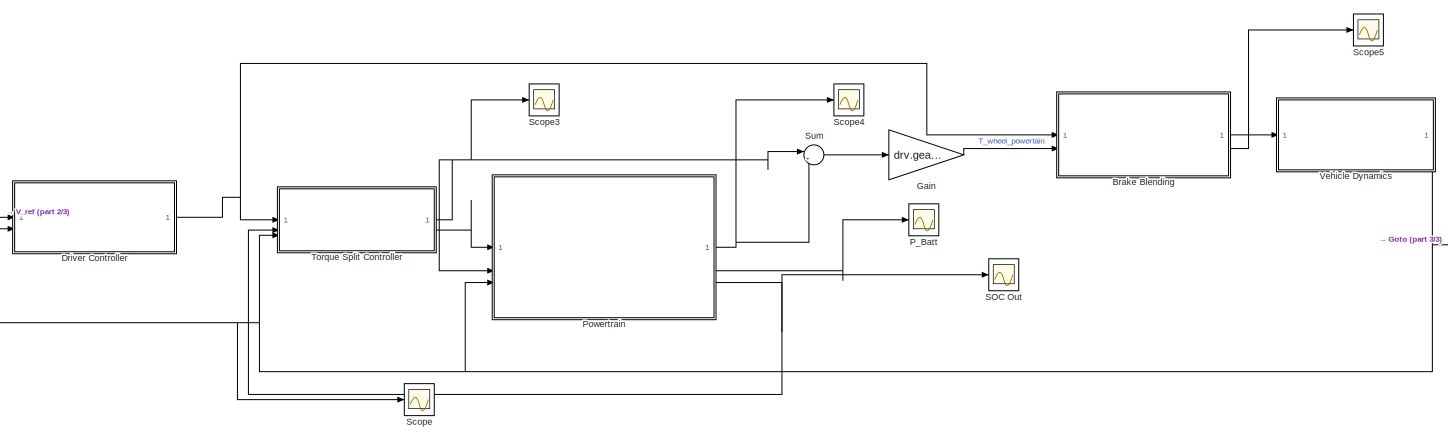
[diagram: root canvas - part 1/3, most of the canvas]
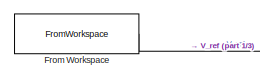
[diagram: root canvas - part 2/3, middle left region]
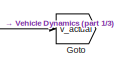
[diagram: root canvas - part 3/3, middle right region]
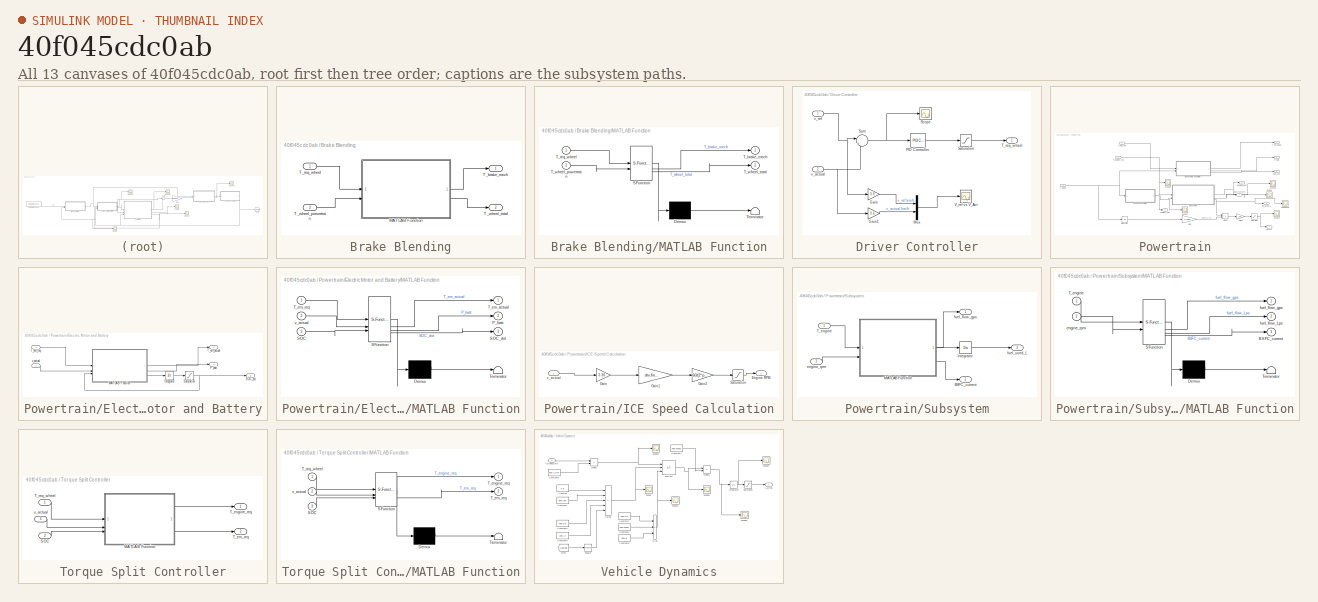
[diagram: thumbnail index - all 13 canvases of the model, root first then tree order]
MODEL slx_40f045cdc0ab
KIND model
CONFIG AbsTol = auto
CONFIG EnableMultiTasking = off
CONFIG FixedStep = auto
CONFIG MaxStep = auto
CONFIG MinStep = auto
CONFIG RelTol = 1e-3
CONFIG SampleTimeConstraint = Unconstrained
CONFIG SolverName = VariableStepAuto
CONFIG StartTime = 0.0
CONFIG StopTime = t_sim(end)
BLOCK [SubSystem] Brake Blending
BLOCK [SubSystem] Brake Blending/MATLAB Function
  ErrorFcn = Stateflow.Translate.translate
  PermitHierarchicalResolution = ExplicitOnly
  SFBlockType = MATLAB Function
  TreatAsAtomicUnit = on
BLOCK [Demux] Brake Blending/MATLAB Function/ Demux 
  Outputs = 1
BLOCK [S-Function] Brake Blending/MATLAB Function/ SFunction 
  EnableBusSupport = off
  FunctionName = sf_sfun
  PortCounts = [2 3]
  SFcnIsStateOwnerBlock = off
  SFunctionDeploymentMode = off
  Tag = Stateflow S-Function 3
BLOCK [Terminator] Brake Blending/MATLAB Function/ Terminator 
BLOCK [Outport] Brake Blending/MATLAB Function/T_brake_mech
BLOCK [Inport] Brake Blending/MATLAB Function/T_req_wheel
BLOCK [Inport] Brake Blending/MATLAB Function/T_wheel_powertrain
  Port = 2
BLOCK [Outport] Brake Blending/MATLAB Function/T_wheel_total
  Port = 2
BLOCK [Outport] Brake Blending/T_brake_mech
BLOCK [Inport] Brake Blending/T_req_wheel
BLOCK [Inport] Brake Blending/T_wheel_powertrain
  Port = 2
BLOCK [Outport] Brake Blending/T_wheel_total
  Port = 2
BLOCK [SubSystem] Driver Controller
BLOCK [Gain] Driver Controller/Gain
  Gain = 3.6
BLOCK [Gain] Driver Controller/Gain1
  Gain = 3.6
BLOCK [Mux] Driver Controller/Mux
  DisplayOption = bar
  Inputs = 2
BLOCK [Reference] Driver Controller/PID Controller  REF=slpidlib/PID Controller
  LibrarySourceBlock = simulink/Continuous/PID Controller
  SourceBlock = slpidlib/PID Controller
  SourceType = PID 1dof
BLOCK [Saturate] Driver Controller/Saturation
  LowerLimit = -8000
  UpperLimit = 9000
BLOCK [Scope] Driver Controller/Scope
  ActiveDisplayYMaximum = 6.4991716628019018
  ActiveDisplayYMinimum = -2.1142157270065436
  DataLoggingVariableName = ScopeData1
  Floating = off
  GraphicalSettings = {"Style":{"BackgroundColor":[0.12941176470588237,0.12941176470588237,0.12941176470588237],"AxesColor":[0.07058823529411765,0.07058823529411765,0.07058823529411765],"LabelsColor":[0.8509803921568627,0.8509803921568627,0.8509803921568627],"PreserveColors":false,"Visible":[true],"LineStyle":["-"],"LineWidth":[1.5],"BarWidth":[0.9],"LineColor":["auto"],"LineFaceAlpha":[1],"LineEdgeAlpha":[1],"Marker":...<+1987ch>
  MultipleDisplayCache = [{"MaxYLimMag":6.4991716628019018,"MaxYLimReal":6.4991716628019018,"MinYLimMag":0,"MinYLimReal":-2.1142157270065436,"PlotAsMagnitudePhase":false,"ShowGrid":true,"ShowLegend":false,"Title":"%<SignalLabel>","YLabel":""}]
  NumInputPorts = 1
  ScopeFrameLocation = window
  WasSavedAsWebScope = on
  WindowPosition = [1.000000,41.000000,1920.000000,1017.000000,]
BLOCK [Sum] Driver Controller/Sum
  Inputs = |+-
BLOCK [Outport] Driver Controller/T_req_wheel
BLOCK [Scope] Driver Controller/V_ref vs V_Act
  ActiveDisplayYMaximum = 116.00699165031097
  ActiveDisplayYMinimum = -59.84583962610084
  DataLoggingVariableName = ScopeData8
  Floating = off
  GraphicalSettings = {"Style":{"BackgroundColor":[0.12941176470588237,0.12941176470588237,0.12941176470588237],"AxesColor":[0.07058823529411765,0.07058823529411765,0.07058823529411765],"LabelsColor":[0.8509803921568627,0.8509803921568627,0.8509803921568627],"PreserveColors":false,"Visible":[true,true],"LineStyle":["-","-"],"LineWidth":[1.5,1.5],"BarWidth":[0.9,0.9],"LineColor":["auto","auto"],"LineFaceAlpha":[1,1],"Li...<+2128ch>
  MultipleDisplayCache = [{"MaxYLimMag":147.71536783772888,"MaxYLimReal":116.00699165031097,"MinYLimMag":0,"MinYLimReal":-59.84583962610084,"PlotAsMagnitudePhase":false,"ShowGrid":true,"ShowLegend":true,"Title":"%<SignalLabel>","YLabel":""}]
  NumInputPorts = 1
  ScopeFrameLocation = window
  ShowLegend = on
  WasSavedAsWebScope = on
  WindowPosition = [1.000000,41.000000,1920.000000,1017.000000,]
BLOCK [Inport] Driver Controller/v_actual
  Port = 2
BLOCK [Inport] Driver Controller/v_ref
BLOCK [FromWorkspace] From Workspace
  VariableName = drive_cycle_signal
BLOCK [Gain] Gain
  Gain = drv.gear_ratios(2) * drv.final_drive * drv.efficiency
BLOCK [Goto] Goto
  GotoTag = v_actual
  TagVisibility = global
BLOCK [Scope] P_Batt
  ActiveDisplayYMaximum = 55257.687996043387
  ActiveDisplayYMinimum = -50370.395250295172
  DataLoggingVariableName = ScopeData9
  Floating = off
  GraphicalSettings = {"Style":{"BackgroundColor":[0.12941176470588237,0.12941176470588237,0.12941176470588237],"AxesColor":[0.07058823529411765,0.07058823529411765,0.07058823529411765],"LabelsColor":[0.8509803921568627,0.8509803921568627,0.8509803921568627],"PreserveColors":false,"Visible":[true],"LineStyle":["-"],"LineWidth":[1.5],"BarWidth":[0.9],"LineColor":["auto"],"LineFaceAlpha":[1],"LineEdgeAlpha":[1],"Marker":...<+2015ch>
  MultipleDisplayCache = [{"MaxYLimMag":23015.815014718442,"MaxYLimReal":55257.687996043387,"MinYLimMag":0,"MinYLimReal":-50370.395250295172,"PlotAsMagnitudePhase":false,"ShowGrid":true,"ShowLegend":false,"Title":"%<SignalLabel>","YLabel":""}]
  NumInputPorts = 1
  ScopeFrameLocation = window
  Visible = on
  WasSavedAsWebScope = on
  WindowPosition = [680.000000,330.000000,560.000000,420.000000,]
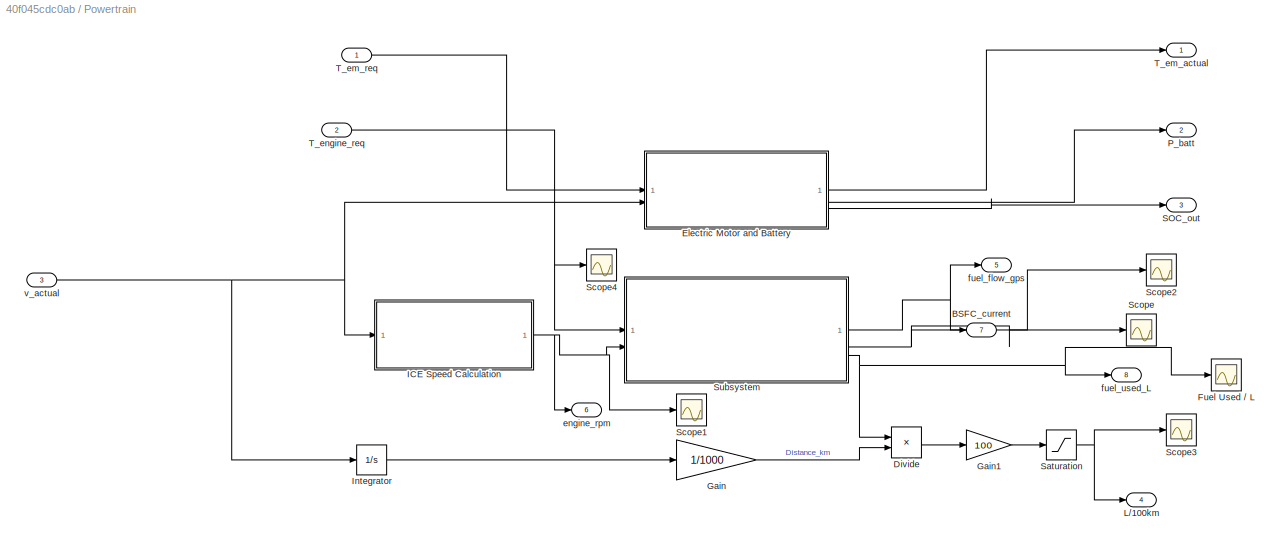
BLOCK [SubSystem] Powertrain
BLOCK [Outport] Powertrain/BSFC_current
  Port = 7
BLOCK [Product] Powertrain/Divide
  Inputs = */
BLOCK [SubSystem] Powertrain/Electric Motor and Battery
BLOCK [Integrator] Powertrain/Electric Motor and Battery/Integrator
  InitialCondition = batt.SOC_init
BLOCK [SubSystem] Powertrain/Electric Motor and Battery/MATLAB Function
  ErrorFcn = Stateflow.Translate.translate
  PermitHierarchicalResolution = ExplicitOnly
  SFBlockType = MATLAB Function
  TreatAsAtomicUnit = on
BLOCK [Demux] Powertrain/Electric Motor and Battery/MATLAB Function/ Demux 
  Outputs = 1
BLOCK [S-Function] Powertrain/Electric Motor and Battery/MATLAB Function/ SFunction 
  EnableBusSupport = off
  FunctionName = sf_sfun
  PortCounts = [3 4]
  SFcnIsStateOwnerBlock = off
  SFunctionDeploymentMode = off
  Tag = Stateflow S-Function 4
BLOCK [Terminator] Powertrain/Electric Motor and Battery/MATLAB Function/ Terminator 
BLOCK [Outport] Powertrain/Electric Motor and Battery/MATLAB Function/P_batt
  Port = 2
BLOCK [Inport] Powertrain/Electric Motor and Battery/MATLAB Function/SOC
  Port = 3
BLOCK [Outport] Powertrain/Electric Motor and Battery/MATLAB Function/SOC_dot
  Port = 3
BLOCK [Outport] Powertrain/Electric Motor and Battery/MATLAB Function/T_em_actual
BLOCK [Inport] Powertrain/Electric Motor and Battery/MATLAB Function/T_em_req
BLOCK [Inport] Powertrain/Electric Motor and Battery/MATLAB Function/v_actual
  Port = 2
BLOCK [Outport] Powertrain/Electric Motor and Battery/P_batt
  Port = 2
BLOCK [Outport] Powertrain/Electric Motor and Battery/SOC_out
  Port = 3
BLOCK [Saturate] Powertrain/Electric Motor and Battery/Saturation
  LowerLimit = 0.2
  UpperLimit = 1
BLOCK [Outport] Powertrain/Electric Motor and Battery/T_em_actual
BLOCK [Inport] Powertrain/Electric Motor and Battery/T_em_req
BLOCK [Inport] Powertrain/Electric Motor and Battery/v_actual
  Port = 2
BLOCK [Scope] Powertrain/Fuel Used // L
  ActiveDisplayYMaximum = 0.63814459638447762
  ActiveDisplayYMinimum = -0.070904955153830829
  DataLoggingVariableName = ScopeData19
  Floating = off
  GraphicalSettings = {"Style":{"BackgroundColor":[0.12941176470588237,0.12941176470588237,0.12941176470588237],"AxesColor":[0.07058823529411765,0.07058823529411765,0.07058823529411765],"LabelsColor":[0.8509803921568627,0.8509803921568627,0.8509803921568627],"PreserveColors":false,"Visible":[true],"LineStyle":["-"],"LineWidth":[1.5],"BarWidth":[0.9],"LineColor":["auto"],"LineFaceAlpha":[1],"LineEdgeAlpha":[1],"Marker":...<+2013ch>
  MultipleDisplayCache = [{"MaxYLimMag":0.63814459638447762,"MaxYLimReal":0.63814459638447762,"MinYLimMag":0,"MinYLimReal":-0.070904955153830829,"PlotAsMagnitudePhase":false,"ShowGrid":true,"ShowLegend":false,"Title":"%<SignalLabel>","YLabel":""}]
  NumInputPorts = 1
  ScopeFrameLocation = window
  Visible = on
  WasSavedAsWebScope = on
  WindowPosition = [0.000000,32.000000,1920.000000,1017.000000,]
BLOCK [Gain] Powertrain/Gain
  Gain = 1/1000
BLOCK [Gain] Powertrain/Gain1
  Gain = 100
BLOCK [SubSystem] Powertrain/ICE Speed Calculation
BLOCK [Outport] Powertrain/ICE Speed Calculation/Engine RPM
BLOCK [Gain] Powertrain/ICE Speed Calculation/Gain
  Gain = 3.36
BLOCK [Gain] Powertrain/ICE Speed Calculation/Gain1
  Gain = drv.final_drive
BLOCK [Gain] Powertrain/ICE Speed Calculation/Gain2
  Gain = 60/(2*pi)
BLOCK [Saturate] Powertrain/ICE Speed Calculation/Saturation
  LowerLimit = eng.idle_rpm
  UpperLimit = eng.redline_rpm
BLOCK [Inport] Powertrain/ICE Speed Calculation/v_actual
BLOCK [Integrator] Powertrain/Integrator
BLOCK [Outport] Powertrain/L//100km 
  Port = 4
BLOCK [Outport] Powertrain/P_batt
  Port = 2
BLOCK [Outport] Powertrain/SOC_out
  Port = 3
BLOCK [Saturate] Powertrain/Saturation
  LowerLimit = 0
  UpperLimit = inf
BLOCK [Scope] Powertrain/Scope
  ActiveDisplayYMaximum = 584.63475679783562
  ActiveDisplayYMinimum = -64.959417421981726
  DataLoggingVariableName = ScopeData14
  Floating = off
  GraphicalSettings = {"Style":{"BackgroundColor":[0.12941176470588237,0.12941176470588237,0.12941176470588237],"AxesColor":[0.07058823529411765,0.07058823529411765,0.07058823529411765],"LabelsColor":[0.8509803921568627,0.8509803921568627,0.8509803921568627],"PreserveColors":false,"Visible":[true],"LineStyle":["-"],"LineWidth":[1.5],"BarWidth":[0.9],"LineColor":["auto"],"LineFaceAlpha":[1],"LineEdgeAlpha":[1],"Marker":...<+2023ch>
  MultipleDisplayCache = [{"MaxYLimMag":584.63475679783562,"MaxYLimReal":584.63475679783562,"MinYLimMag":0,"MinYLimReal":-64.959417421981726,"PlotAsMagnitudePhase":false,"ShowGrid":true,"ShowLegend":false,"Title":"%<SignalLabel>","YLabel":""}]
  NumInputPorts = 1
  ScopeFrameLocation = window
  WasSavedAsWebScope = on
  WindowPosition = [680.000000,330.000000,560.000000,420.000000,]
BLOCK [Scope] Powertrain/Scope1
  ActiveDisplayYMaximum = 3848.0731026843932
  ActiveDisplayYMinimum = 461.32521081284528
  DataLoggingVariableName = ScopeData15
  Floating = off
  GraphicalSettings = {"Style":{"BackgroundColor":[0.12941176470588237,0.12941176470588237,0.12941176470588237],"AxesColor":[0.07058823529411765,0.07058823529411765,0.07058823529411765],"LabelsColor":[0.8509803921568627,0.8509803921568627,0.8509803921568627],"PreserveColors":false,"Visible":[true],"LineStyle":["-"],"LineWidth":[1.5],"BarWidth":[0.9],"LineColor":["auto"],"LineFaceAlpha":[1],"LineEdgeAlpha":[1],"Marker":...<+1924ch>
  MultipleDisplayCache = [{"MaxYLimMag":3848.0731026843932,"MaxYLimReal":3848.0731026843932,"MinYLimMag":461.32521081284528,"MinYLimReal":461.32521081284528,"PlotAsMagnitudePhase":false,"ShowGrid":true,"ShowLegend":false,"Title":"%<SignalLabel>","YLabel":""}]
  NumInputPorts = 1
  ScopeFrameLocation = window
  WasSavedAsWebScope = on
  WindowPosition = [1002.000000,312.000000,560.000000,420.000000,]
BLOCK [Scope] Powertrain/Scope2
  ActiveDisplayYMaximum = 4.6387579025661791
  ActiveDisplayYMinimum = -0.51541754472957535
  DataLoggingVariableName = ScopeData16
  Floating = off
  GraphicalSettings = {"Style":{"BackgroundColor":[0.12941176470588237,0.12941176470588237,0.12941176470588237],"AxesColor":[0.07058823529411765,0.07058823529411765,0.07058823529411765],"LabelsColor":[0.8509803921568627,0.8509803921568627,0.8509803921568627],"PreserveColors":false,"Visible":[true],"LineStyle":["-"],"LineWidth":[1.5],"BarWidth":[0.9],"LineColor":["auto"],"LineFaceAlpha":[1],"LineEdgeAlpha":[1],"Marker":...<+1928ch>
  MultipleDisplayCache = [{"MaxYLimMag":4.6387579025661791,"MaxYLimReal":4.6387579025661791,"MinYLimMag":0,"MinYLimReal":-0.51541754472957535,"PlotAsMagnitudePhase":false,"ShowGrid":true,"ShowLegend":false,"Title":"%<SignalLabel>","YLabel":""}]
  NumInputPorts = 1
  ScopeFrameLocation = window
  WasSavedAsWebScope = on
  WindowPosition = [680.000000,330.000000,560.000000,420.000000,]
BLOCK [Scope] Powertrain/Scope3
  ActiveDisplayYMaximum = 3.1273178989212891
  ActiveDisplayYMinimum = 2.066215608722449
  DataLoggingVariableName = ScopeData17
  Floating = off
  GraphicalSettings = {"AxesScalingProperties":{"AlignXAxis":"Center","AlignYAxis":"Center","AutoScaleXAxisLimits":false,"AxesScaling":"Manual","AxesScalingNumUpdates":10,"ExpandOnly":true,"ScaleAxesLimitsAtStop":false,"XAxisDataRange":100,"YAxisDataRange":80},"DisplayProperties":{"ColorOrder":["auto","auto","auto","auto","auto","auto","auto","auto","auto","auto","auto","auto","auto","auto","auto","auto","auto","auto",...<+2012ch>
  MultipleDisplayCache = [{"MaxYLimMag":481.80638113808465,"MaxYLimReal":3.1273178989212891,"MinYLimMag":0,"MinYLimReal":2.066215608722449,"PlotAsMagnitudePhase":false,"ShowGrid":true,"ShowLegend":false,"Title":"%<SignalLabel>","YLabel":""}]
  NumInputPorts = 1
  ScopeFrameLocation = window
  WasSavedAsWebScope = on
  WindowPosition = [1.000000,41.000000,1920.000000,1017.000000,]
BLOCK [Scope] Powertrain/Scope4
  ActiveDisplayYMaximum = 0.0018440554729160837
  ActiveDisplayYMinimum = -0.0016039605415230742
  DataLoggingVariableName = ScopeData18
  Floating = off
  GraphicalSettings = {"Style":{"BackgroundColor":[0.12941176470588237,0.12941176470588237,0.12941176470588237],"AxesColor":[0.07058823529411765,0.07058823529411765,0.07058823529411765],"LabelsColor":[0.8509803921568627,0.8509803921568627,0.8509803921568627],"PreserveColors":false,"Visible":[true],"LineStyle":["-"],"LineWidth":[1.5],"BarWidth":[0.9],"LineColor":["auto"],"LineFaceAlpha":[1],"LineEdgeAlpha":[1],"Marker":...<+1987ch>
  MultipleDisplayCache = [{"MaxYLimMag":1,"MaxYLimReal":0.0018440554729160837,"MinYLimMag":0,"MinYLimReal":-0.0016039605415230742,"PlotAsMagnitudePhase":false,"ShowGrid":true,"ShowLegend":false,"Title":"%<SignalLabel>","YLabel":""}]
  NumInputPorts = 1
  ScopeFrameLocation = window
  WasSavedAsWebScope = on
  WindowPosition = [680.000000,330.000000,560.000000,420.000000,]
BLOCK [SubSystem] Powertrain/Subsystem
BLOCK [Outport] Powertrain/Subsystem/BSFC_current
  Port = 2
BLOCK [Integrator] Powertrain/Subsystem/Integrator
BLOCK [SubSystem] Powertrain/Subsystem/MATLAB Function
  ErrorFcn = Stateflow.Translate.translate
  PermitHierarchicalResolution = ExplicitOnly
  SFBlockType = MATLAB Function
  TreatAsAtomicUnit = on
BLOCK [Demux] Powertrain/Subsystem/MATLAB Function/ Demux 
  Outputs = 1
BLOCK [S-Function] Powertrain/Subsystem/MATLAB Function/ SFunction 
  EnableBusSupport = off
  FunctionName = sf_sfun
  PortCounts = [2 4]
  SFcnIsStateOwnerBlock = off
  SFunctionDeploymentMode = off
  Tag = Stateflow S-Function 1
BLOCK [Terminator] Powertrain/Subsystem/MATLAB Function/ Terminator 
BLOCK [Outport] Powertrain/Subsystem/MATLAB Function/BSFC_current
  Port = 3
BLOCK [Inport] Powertrain/Subsystem/MATLAB Function/T_engine
BLOCK [Inport] Powertrain/Subsystem/MATLAB Function/engine_rpm
  Port = 2
BLOCK [Outport] Powertrain/Subsystem/MATLAB Function/fuel_flow_Lps
  Port = 2
BLOCK [Outport] Powertrain/Subsystem/MATLAB Function/fuel_flow_gps
BLOCK [Inport] Powertrain/Subsystem/T_engine
BLOCK [Inport] Powertrain/Subsystem/engine_rpm
  Port = 2
BLOCK [Outport] Powertrain/Subsystem/fuel_flow_gps
BLOCK [Outport] Powertrain/Subsystem/fuel_used_L
  Port = 3
BLOCK [Outport] Powertrain/T_em_actual
BLOCK [Inport] Powertrain/T_em_req
BLOCK [Inport] Powertrain/T_engine_req
  Port = 2
BLOCK [Outport] Powertrain/engine_rpm
  Port = 6
BLOCK [Outport] Powertrain/fuel_flow_gps
  Port = 5
BLOCK [Outport] Powertrain/fuel_used_L
  Port = 8
BLOCK [Inport] Powertrain/v_actual
  Port = 3
BLOCK [Scope] SOC Out
  ActiveDisplayYMaximum = 1.010421243977033
  ActiveDisplayYMinimum = 0.90620880420670313
  DataLoggingVariableName = ScopeData10
  Floating = off
  GraphicalSettings = {"Style":{"BackgroundColor":[0.12941176470588237,0.12941176470588237,0.12941176470588237],"AxesColor":[0.07058823529411765,0.07058823529411765,0.07058823529411765],"LabelsColor":[0.8509803921568627,0.8509803921568627,0.8509803921568627],"PreserveColors":false,"Visible":[true],"LineStyle":["-"],"LineWidth":[1.5],"BarWidth":[0.9],"LineColor":["auto"],"LineFaceAlpha":[1],"LineEdgeAlpha":[1],"Marker":...<+2036ch>
  MultipleDisplayCache = [{"MaxYLimMag":1.010421243977033,"MaxYLimReal":1.010421243977033,"MinYLimMag":0.90620880420670313,"MinYLimReal":0.90620880420670313,"PlotAsMagnitudePhase":false,"ShowGrid":true,"ShowLegend":false,"Title":"%<SignalLabel>","YLabel":""}]
  NumInputPorts = 1
  ScopeFrameLocation = window
  Visible = on
  WasSavedAsWebScope = on
  WindowPosition = [0.000000,32.000000,1920.000000,1017.000000,]
BLOCK [Scope] Scope
  ActiveDisplayYMaximum = 41.010283891516906
  ActiveDisplayYMinimum = -4.5566982101685438
  Floating = off
  GraphicalSettings = {"Style":{"BackgroundColor":[0.12941176470588237,0.12941176470588237,0.12941176470588237],"AxesColor":[0.07058823529411765,0.07058823529411765,0.07058823529411765],"LabelsColor":[0.8509803921568627,0.8509803921568627,0.8509803921568627],"PreserveColors":false,"Visible":[true],"LineStyle":["-"],"LineWidth":[1.5],"BarWidth":[0.9],"LineColor":["auto"],"LineFaceAlpha":[1],"LineEdgeAlpha":[1],"Marker":...<+2015ch>
  MultipleDisplayCache = [{"MaxYLimMag":41.010283891516906,"MaxYLimReal":41.010283891516906,"MinYLimMag":0,"MinYLimReal":-4.5566982101685438,"PlotAsMagnitudePhase":false,"ShowGrid":true,"ShowLegend":false,"Title":"%<SignalLabel>","YLabel":""}]
  NumInputPorts = 1
  ScopeFrameLocation = window
  WasSavedAsWebScope = on
  WindowPosition = [1.000000,41.000000,1920.000000,1017.000000,]
BLOCK [Scope] Scope3
  ActiveDisplayYMaximum = 361.87194675192251
  ActiveDisplayYMinimum = -44.826421034170984
  DataLoggingVariableName = ScopeData11
  Floating = off
  GraphicalSettings = {"AxesScalingProperties":{"AlignXAxis":"Center","AlignYAxis":"Center","AutoScaleXAxisLimits":false,"AxesScaling":"Manual","AxesScalingNumUpdates":10,"ExpandOnly":true,"ScaleAxesLimitsAtStop":false,"XAxisDataRange":100,"YAxisDataRange":80},"DisplayProperties":{"ColorOrder":["auto","auto","auto","auto","auto","auto","auto","auto","auto","auto","auto","auto","auto","auto","auto","auto","auto","auto",...<+2062ch>
  MultipleDisplayCache = [{"MaxYLimMag":490.51323874750244,"MaxYLimReal":361.87194675192251,"MinYLimMag":0,"MinYLimReal":-44.826421034170984,"PlotAsMagnitudePhase":false,"ShowGrid":true,"ShowLegend":false,"Title":"%<SignalLabel>","YLabel":""}]
  NumInputPorts = 1
  ScopeFrameLocation = window
  WasSavedAsWebScope = on
  WindowPosition = [1039.000000,375.000000,560.000000,420.000000,]
BLOCK [Scope] Scope4
  ActiveDisplayYMaximum = 1
  ActiveDisplayYMinimum = -1
  DataLoggingVariableName = ScopeData12
  Floating = off
  GraphicalSettings = {"Style":{"BackgroundColor":[0.12941176470588237,0.12941176470588237,0.12941176470588237],"AxesColor":[0.07058823529411765,0.07058823529411765,0.07058823529411765],"LabelsColor":[0.8509803921568627,0.8509803921568627,0.8509803921568627],"PreserveColors":false,"Visible":[true],"LineStyle":["-"],"LineWidth":[1.5],"BarWidth":[0.9],"LineColor":["auto"],"LineFaceAlpha":[1],"LineEdgeAlpha":[1],"Marker":...<+1926ch>
  MultipleDisplayCache = [{"MaxYLimMag":1,"MaxYLimReal":1,"MinYLimMag":0,"MinYLimReal":-1,"PlotAsMagnitudePhase":false,"ShowGrid":true,"ShowLegend":false,"Title":"%<SignalLabel>","YLabel":""}]
  NumInputPorts = 1
  ScopeFrameLocation = window
  WasSavedAsWebScope = on
  WindowPosition = [1.000000,41.000000,1920.000000,1017.000000,]
BLOCK [Scope] Scope5
  ActiveDisplayYMaximum = 1
  ActiveDisplayYMinimum = -1
  DataLoggingVariableName = ScopeData13
  Floating = off
  GraphicalSettings = {"Style":{"BackgroundColor":[0.12941176470588237,0.12941176470588237,0.12941176470588237],"AxesColor":[0.07058823529411765,0.07058823529411765,0.07058823529411765],"LabelsColor":[0.8509803921568627,0.8509803921568627,0.8509803921568627],"PreserveColors":false,"Visible":[true],"LineStyle":["-"],"LineWidth":[1.5],"BarWidth":[0.9],"LineColor":["auto"],"LineFaceAlpha":[1],"LineEdgeAlpha":[1],"Marker":...<+1942ch>
  MultipleDisplayCache = [{"MaxYLimMag":1,"MaxYLimReal":1,"MinYLimMag":0,"MinYLimReal":-1,"PlotAsMagnitudePhase":false,"ShowGrid":true,"ShowLegend":false,"Title":"%<SignalLabel>","YLabel":""}]
  NumInputPorts = 1
  ScopeFrameLocation = window
  WasSavedAsWebScope = on
  WindowPosition = [1.000000,41.000000,1920.000000,1017.000000,]
BLOCK [Sum] Sum
  Inputs = |++
BLOCK [SubSystem] Torque Split Controller
BLOCK [SubSystem] Torque Split Controller/MATLAB Function
  ErrorFcn = Stateflow.Translate.translate
  PermitHierarchicalResolution = ExplicitOnly
  SFBlockType = MATLAB Function
  TreatAsAtomicUnit = on
BLOCK [Demux] Torque Split Controller/MATLAB Function/ Demux 
  Outputs = 1
BLOCK [S-Function] Torque Split Controller/MATLAB Function/ SFunction 
  EnableBusSupport = off
  FunctionName = sf_sfun
  PortCounts = [3 3]
  SFcnIsStateOwnerBlock = off
  SFunctionDeploymentMode = off
  Tag = Stateflow S-Function 2
BLOCK [Terminator] Torque Split Controller/MATLAB Function/ Terminator 
BLOCK [Inport] Torque Split Controller/MATLAB Function/SOC
  Port = 3
BLOCK [Outport] Torque Split Controller/MATLAB Function/T_em_req
  Port = 2
BLOCK [Outport] Torque Split Controller/MATLAB Function/T_engine_req
BLOCK [Inport] Torque Split Controller/MATLAB Function/T_req_wheel
BLOCK [Inport] Torque Split Controller/MATLAB Function/v_actual
  Port = 2
BLOCK [Inport] Torque Split Controller/SOC
  Port = 2
BLOCK [Outport] Torque Split Controller/T_em_req
  Port = 2
BLOCK [Outport] Torque Split Controller/T_engine_req
BLOCK [Inport] Torque Split Controller/T_req_wheel
BLOCK [Inport] Torque Split Controller/v_actual
  Port = 3
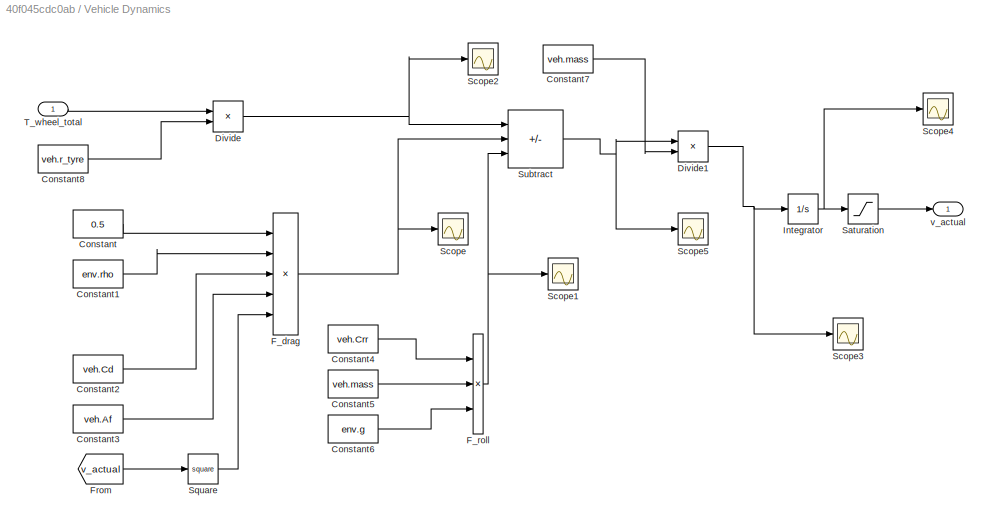
BLOCK [SubSystem] Vehicle Dynamics
BLOCK [Constant] Vehicle Dynamics/Constant
  Value = 0.5
BLOCK [Constant] Vehicle Dynamics/Constant1
  Value = env.rho
BLOCK [Constant] Vehicle Dynamics/Constant2
  Value = veh.Cd
BLOCK [Constant] Vehicle Dynamics/Constant3
  Value = veh.Af
BLOCK [Constant] Vehicle Dynamics/Constant4
  Value = veh.Crr
BLOCK [Constant] Vehicle Dynamics/Constant5
  Value = veh.mass
BLOCK [Constant] Vehicle Dynamics/Constant6
  Value = env.g
BLOCK [Constant] Vehicle Dynamics/Constant7
  Value = veh.mass
BLOCK [Constant] Vehicle Dynamics/Constant8
  Value = veh.r_tyre
BLOCK [Product] Vehicle Dynamics/Divide
  Inputs = */
BLOCK [Product] Vehicle Dynamics/Divide1
  Inputs = */
BLOCK [Product] Vehicle Dynamics/F_drag
  Inputs = *****
BLOCK [Product] Vehicle Dynamics/F_roll
  Inputs = ***
BLOCK [From] Vehicle Dynamics/From
  GotoTag = v_actual
  TagVisibility = global
BLOCK [Integrator] Vehicle Dynamics/Integrator
BLOCK [Saturate] Vehicle Dynamics/Saturation
  LowerLimit = 0
  UpperLimit = inf
BLOCK [Scope] Vehicle Dynamics/Scope
  ActiveDisplayYMaximum = 218.39991255520087
  ActiveDisplayYMinimum = -24.266656950577868
  DataLoggingVariableName = ScopeData2
  Floating = off
  GraphicalSettings = {"Style":{"BackgroundColor":[0.12941176470588237,0.12941176470588237,0.12941176470588237],"AxesColor":[0.07058823529411765,0.07058823529411765,0.07058823529411765],"LabelsColor":[0.8509803921568627,0.8509803921568627,0.8509803921568627],"PreserveColors":false,"Visible":[true],"LineStyle":["-"],"LineWidth":[1.5],"BarWidth":[0.9],"LineColor":["auto"],"LineFaceAlpha":[1],"LineEdgeAlpha":[1],"Marker":...<+1969ch>
  MultipleDisplayCache = [{"MaxYLimMag":218.39991255520087,"MaxYLimReal":218.39991255520087,"MinYLimMag":0,"MinYLimReal":-24.266656950577868,"PlotAsMagnitudePhase":false,"ShowGrid":true,"ShowLegend":false,"Title":"%<SignalLabel>","YLabel":""}]
  NumInputPorts = 1
  ScopeFrameLocation = window
  WasSavedAsWebScope = on
  WindowPosition = [1052.000000,180.000000,560.000000,420.000000,]
BLOCK [Scope] Vehicle Dynamics/Scope1
  ActiveDisplayYMaximum = 1
  ActiveDisplayYMinimum = -1
  DataLoggingVariableName = ScopeData3
  Floating = off
  GraphicalSettings = {"Style":{"BackgroundColor":[0.12941176470588237,0.12941176470588237,0.12941176470588237],"AxesColor":[0.07058823529411765,0.07058823529411765,0.07058823529411765],"LabelsColor":[0.8509803921568627,0.8509803921568627,0.8509803921568627],"PreserveColors":false,"Visible":[true],"LineStyle":["-"],"LineWidth":[1.5],"BarWidth":[0.9],"LineColor":["auto"],"LineFaceAlpha":[1],"LineEdgeAlpha":[1],"Marker":...<+1891ch>
  MultipleDisplayCache = [{"MaxYLimMag":1,"MaxYLimReal":1,"MinYLimMag":0,"MinYLimReal":-1,"PlotAsMagnitudePhase":false,"ShowGrid":true,"ShowLegend":false,"Title":"%<SignalLabel>","YLabel":""}]
  NumInputPorts = 1
  ScopeFrameLocation = window
  WasSavedAsWebScope = on
  WindowPosition = [680.000000,330.000000,560.000000,420.000000,]
BLOCK [Scope] Vehicle Dynamics/Scope2
  ActiveDisplayYMaximum = 1
  ActiveDisplayYMinimum = -1
  DataLoggingVariableName = ScopeData4
  Floating = off
  GraphicalSettings = {"Style":{"BackgroundColor":[0.12941176470588237,0.12941176470588237,0.12941176470588237],"AxesColor":[0.07058823529411765,0.07058823529411765,0.07058823529411765],"LabelsColor":[0.8509803921568627,0.8509803921568627,0.8509803921568627],"PreserveColors":false,"Visible":[true],"LineStyle":["-"],"LineWidth":[1.5],"BarWidth":[0.9],"LineColor":["auto"],"LineFaceAlpha":[1],"LineEdgeAlpha":[1],"Marker":...<+1894ch>
  MultipleDisplayCache = [{"MaxYLimMag":1,"MaxYLimReal":1,"MinYLimMag":0,"MinYLimReal":-1,"PlotAsMagnitudePhase":false,"ShowGrid":true,"ShowLegend":false,"Title":"%<SignalLabel>","YLabel":""}]
  NumInputPorts = 1
  ScopeFrameLocation = window
  WasSavedAsWebScope = on
  WindowPosition = [965.000000,226.000000,560.000000,420.000000,]
BLOCK [Scope] Vehicle Dynamics/Scope3
  ActiveDisplayYMaximum = 9.891508192606393
  ActiveDisplayYMinimum = -2.7958949774442536
  DataLoggingVariableName = ScopeData5
  Floating = off
  GraphicalSettings = {"Style":{"BackgroundColor":[0.12941176470588237,0.12941176470588237,0.12941176470588237],"AxesColor":[0.07058823529411765,0.07058823529411765,0.07058823529411765],"LabelsColor":[0.8509803921568627,0.8509803921568627,0.8509803921568627],"PreserveColors":false,"Visible":[true],"LineStyle":["-"],"LineWidth":[1.5],"BarWidth":[0.9],"LineColor":["auto"],"LineFaceAlpha":[1],"LineEdgeAlpha":[1],"Marker":...<+2001ch>
  MultipleDisplayCache = [{"MaxYLimMag":9.891508192606393,"MaxYLimReal":9.891508192606393,"MinYLimMag":0,"MinYLimReal":-2.7958949774442536,"PlotAsMagnitudePhase":false,"ShowGrid":true,"ShowLegend":false,"Title":"%<SignalLabel>","YLabel":""}]
  NumInputPorts = 1
  ScopeFrameLocation = window
  WasSavedAsWebScope = on
  WindowPosition = [680.000000,330.000000,560.000000,420.000000,]
BLOCK [Scope] Vehicle Dynamics/Scope4
  ActiveDisplayYMaximum = 26.298729103763403
  ActiveDisplayYMinimum = -23.289599984727435
  DataLoggingVariableName = ScopeData6
  Floating = off
  GraphicalSettings = {"Style":{"BackgroundColor":[0.12941176470588237,0.12941176470588237,0.12941176470588237],"AxesColor":[0.07058823529411765,0.07058823529411765,0.07058823529411765],"LabelsColor":[0.8509803921568627,0.8509803921568627,0.8509803921568627],"PreserveColors":false,"Visible":[true],"LineStyle":["-"],"LineWidth":[1.5],"BarWidth":[0.9],"LineColor":["auto"],"LineFaceAlpha":[1],"LineEdgeAlpha":[1],"Marker":...<+2005ch>
  MultipleDisplayCache = [{"MaxYLimMag":26.298729103763403,"MaxYLimReal":26.298729103763403,"MinYLimMag":0,"MinYLimReal":-23.289599984727435,"PlotAsMagnitudePhase":false,"ShowGrid":true,"ShowLegend":false,"Title":"%<SignalLabel>","YLabel":""}]
  NumInputPorts = 1
  ScopeFrameLocation = window
  WasSavedAsWebScope = on
  WindowPosition = [680.000000,330.000000,560.000000,420.000000,]
BLOCK [Scope] Vehicle Dynamics/Scope5
  ActiveDisplayYMaximum = 26440.254099398542
  ActiveDisplayYMinimum = 26089.342628460628
  DataLoggingVariableName = ScopeData7
  Floating = off
  GraphicalSettings = {"AxesScalingProperties":{"AlignXAxis":"Center","AlignYAxis":"Center","AutoScaleXAxisLimits":false,"AxesScaling":"Manual","AxesScalingNumUpdates":10,"ExpandOnly":true,"ScaleAxesLimitsAtStop":false,"XAxisDataRange":100,"YAxisDataRange":80},"DisplayProperties":{"ColorOrder":["auto","auto","auto","auto","auto","auto","auto","auto","auto","auto","auto","auto","auto","auto","auto","auto","auto","auto",...<+2008ch>
  MultipleDisplayCache = [{"MaxYLimMag":29555.74376470588,"MaxYLimReal":26440.254099398542,"MinYLimMag":0,"MinYLimReal":26089.342628460628,"PlotAsMagnitudePhase":false,"ShowGrid":true,"ShowLegend":false,"Title":"%<SignalLabel>","YLabel":""}]
  NumInputPorts = 1
  ScopeFrameLocation = window
  WasSavedAsWebScope = on
  WindowPosition = [680.000000,330.000000,560.000000,420.000000,]
BLOCK [Math] Vehicle Dynamics/Square
  Operator = square
BLOCK [Sum] Vehicle Dynamics/Subtract
  IconShape = rectangular
  Inputs = +--
BLOCK [Inport] Vehicle Dynamics/T_wheel_total
BLOCK [Outport] Vehicle Dynamics/v_actual
LINE Brake Blending/MATLAB Function:1 -> Brake Blending/T_brake_mech:1
LINE Brake Blending/MATLAB Function:2 -> Brake Blending/T_wheel_total:1
LINE Brake Blending/T_req_wheel:1 -> Brake Blending/MATLAB Function:1
LINE Brake Blending/T_wheel_powertrain:1 -> Brake Blending/MATLAB Function:2
LINE Brake Blending:1 -> Scope5:1
LINE Brake Blending:2 -> Vehicle Dynamics:1
LINE Driver Controller/Gain1:1 -> Driver Controller/Mux:2
LINE Driver Controller/Gain:1 -> Driver Controller/Mux:1
LINE Driver Controller/Mux:1 -> Driver Controller/V_ref vs V_Act:1
LINE Driver Controller/PID Controller:1 -> Driver Controller/Saturation:1
LINE Driver Controller/Saturation:1 -> Driver Controller/T_req_wheel:1
NET Driver Controller/Sum:1 -> Driver Controller/PID Controller:1, Driver Controller/Scope:1
NET Driver Controller/v_actual:1 -> Driver Controller/Gain1:1, Driver Controller/Sum:2
NET Driver Controller/v_ref:1 -> Driver Controller/Gain:1, Driver Controller/Sum:1
NET Driver Controller:1 -> Brake Blending:1, Torque Split Controller:1
LINE From Workspace:1 -> Driver Controller:1
LINE Gain:1 -> Brake Blending:2
LINE Powertrain/Divide:1 -> Powertrain/Gain1:1
LINE Powertrain/Electric Motor and Battery/Integrator:1 -> Powertrain/Electric Motor and Battery/Saturation:1
LINE Powertrain/Electric Motor and Battery/MATLAB Function:1 -> Powertrain/Electric Motor and Battery/T_em_actual:1
LINE Powertrain/Electric Motor and Battery/MATLAB Function:2 -> Powertrain/Electric Motor and Battery/P_batt:1
LINE Powertrain/Electric Motor and Battery/MATLAB Function:3 -> Powertrain/Electric Motor and Battery/Integrator:1
NET Powertrain/Electric Motor and Battery/Saturation:1 -> Powertrain/Electric Motor and Battery/MATLAB Function:3, Powertrain/Electric Motor and Battery/SOC_out:1
LINE Powertrain/Electric Motor and Battery/T_em_req:1 -> Powertrain/Electric Motor and Battery/MATLAB Function:1
LINE Powertrain/Electric Motor and Battery/v_actual:1 -> Powertrain/Electric Motor and Battery/MATLAB Function:2
LINE Powertrain/Electric Motor and Battery:1 -> Powertrain/T_em_actual:1
LINE Powertrain/Electric Motor and Battery:2 -> Powertrain/P_batt:1
LINE Powertrain/Electric Motor and Battery:3 -> Powertrain/SOC_out:1
LINE Powertrain/Gain1:1 -> Powertrain/Saturation:1
LINE Powertrain/Gain:1 -> Powertrain/Divide:2
LINE Powertrain/ICE Speed Calculation/Gain1:1 -> Powertrain/ICE Speed Calculation/Gain2:1
LINE Powertrain/ICE Speed Calculation/Gain2:1 -> Powertrain/ICE Speed Calculation/Saturation:1
LINE Powertrain/ICE Speed Calculation/Gain:1 -> Powertrain/ICE Speed Calculation/Gain1:1
LINE Powertrain/ICE Speed Calculation/Saturation:1 -> Powertrain/ICE Speed Calculation/Engine RPM:1
LINE Powertrain/ICE Speed Calculation/v_actual:1 -> Powertrain/ICE Speed Calculation/Gain:1
NET Powertrain/ICE Speed Calculation:1 -> Powertrain/Scope1:1, Powertrain/Subsystem:2, Powertrain/engine_rpm:1
LINE Powertrain/Integrator:1 -> Powertrain/Gain:1
NET Powertrain/Saturation:1 -> Powertrain/L//100km :1, Powertrain/Scope3:1
LINE Powertrain/Subsystem/Integrator:1 -> Powertrain/Subsystem/fuel_used_L:1
LINE Powertrain/Subsystem/MATLAB Function:1 -> Powertrain/Subsystem/fuel_flow_gps:1
LINE Powertrain/Subsystem/MATLAB Function:2 -> Powertrain/Subsystem/Integrator:1
LINE Powertrain/Subsystem/MATLAB Function:3 -> Powertrain/Subsystem/BSFC_current:1
LINE Powertrain/Subsystem/T_engine:1 -> Powertrain/Subsystem/MATLAB Function:1
LINE Powertrain/Subsystem/engine_rpm:1 -> Powertrain/Subsystem/MATLAB Function:2
NET Powertrain/Subsystem:1 -> Powertrain/Scope2:1, Powertrain/fuel_flow_gps:1
NET Powertrain/Subsystem:2 -> Powertrain/BSFC_current:1, Powertrain/Scope:1
NET Powertrain/Subsystem:3 -> Powertrain/Divide:1, Powertrain/Fuel Used // L:1, Powertrain/fuel_used_L:1
LINE Powertrain/T_em_req:1 -> Powertrain/Electric Motor and Battery:1
NET Powertrain/T_engine_req:1 -> Powertrain/Scope4:1, Powertrain/Subsystem:1
NET Powertrain/v_actual:1 -> Powertrain/Electric Motor and Battery:2, Powertrain/ICE Speed Calculation:1, Powertrain/Integrator:1
NET Powertrain:1 -> Scope4:1, Sum:2
LINE Powertrain:2 -> P_Batt:1
NET Powertrain:3 -> SOC Out:1, Torque Split Controller:2
LINE Sum:1 -> Gain:1
LINE Torque Split Controller/MATLAB Function:1 -> Torque Split Controller/T_engine_req:1
LINE Torque Split Controller/MATLAB Function:2 -> Torque Split Controller/T_em_req:1
LINE Torque Split Controller/SOC:1 -> Torque Split Controller/MATLAB Function:3
LINE Torque Split Controller/T_req_wheel:1 -> Torque Split Controller/MATLAB Function:1
LINE Torque Split Controller/v_actual:1 -> Torque Split Controller/MATLAB Function:2
NET Torque Split Controller:1 -> Powertrain:2, Scope3:1, Sum:1
LINE Torque Split Controller:2 -> Powertrain:1
LINE Vehicle Dynamics/Constant1:1 -> Vehicle Dynamics/F_drag:2
LINE Vehicle Dynamics/Constant2:1 -> Vehicle Dynamics/F_drag:3
LINE Vehicle Dynamics/Constant3:1 -> Vehicle Dynamics/F_drag:4
LINE Vehicle Dynamics/Constant4:1 -> Vehicle Dynamics/F_roll:1
LINE Vehicle Dynamics/Constant5:1 -> Vehicle Dynamics/F_roll:2
LINE Vehicle Dynamics/Constant6:1 -> Vehicle Dynamics/F_roll:3
LINE Vehicle Dynamics/Constant7:1 -> Vehicle Dynamics/Divide1:2
LINE Vehicle Dynamics/Constant8:1 -> Vehicle Dynamics/Divide:2
LINE Vehicle Dynamics/Constant:1 -> Vehicle Dynamics/F_drag:1
NET Vehicle Dynamics/Divide1:1 -> Vehicle Dynamics/Integrator:1, Vehicle Dynamics/Scope3:1
NET Vehicle Dynamics/Divide:1 -> Vehicle Dynamics/Scope2:1, Vehicle Dynamics/Subtract:1
NET Vehicle Dynamics/F_drag:1 -> Vehicle Dynamics/Scope:1, Vehicle Dynamics/Subtract:2
NET Vehicle Dynamics/F_roll:1 -> Vehicle Dynamics/Scope1:1, Vehicle Dynamics/Subtract:3
LINE Vehicle Dynamics/From:1 -> Vehicle Dynamics/Square:1
NET Vehicle Dynamics/Integrator:1 -> Vehicle Dynamics/Saturation:1, Vehicle Dynamics/Scope4:1
LINE Vehicle Dynamics/Saturation:1 -> Vehicle Dynamics/v_actual:1
LINE Vehicle Dynamics/Square:1 -> Vehicle Dynamics/F_drag:5
NET Vehicle Dynamics/Subtract:1 -> Vehicle Dynamics/Divide1:1, Vehicle Dynamics/Scope5:1
LINE Vehicle Dynamics/T_wheel_total:1 -> Vehicle Dynamics/Divide:1
NET Vehicle Dynamics:1 -> Driver Controller:2, Goto:1, Powertrain:3, Scope:1, Torque Split Controller:3
note: NET lines group one-source signal fan-out (src -> all destinations, sorted); 1:1 wires keep LINE
CHART Powertrain/Subsystem/MATLAB Function states=1 transitions=1
  STATE_LABEL 'eML_blk_kernel()'
  STATE_LABEL 'SCRIPT:\nfunction [fuel_flow_gps, fuel_flow_Lps, BSFC_current] = fuelModel(T_engine, engine_rpm)\n\n% Fuel constants\nfuel_density = 0.745; % kg/L\n\n% BSFC map\nrpm_grid = [1000 1500 2000 2500 3000 3500 4000 4500 5000 5500 6000 6500];\n\ntorque_grid = [0 50 100 150 200 250 300 350 400 450];\n\nBSFC_map = [\n    0   0   0   0   0   0   0   0   0   0   0   0;\n    520 480 450 430 430 445 470 500 540 590 650 720...<+1199ch>'
CHART Torque Split Controller/MATLAB Function states=1 transitions=1
  STATE_LABEL 'eML_blk_kernel()'
  STATE_LABEL 'SCRIPT:\nfunction [T_engine_req, T_em_req] = torqueSplit(T_req_wheel, v_actual, SOC)\n\n% Parameters from workspace are passed using constants for now\ngear_ratio = 3.36;\nfinal_drive = 3.0;\neta_drv = 0.90;\n\nem_T_max = 240;\nSOC_min = 0.20;\n\nT_engine_min_on = 30;\n\n% Convert wheel torque request to input-side torque request\ntotal_ratio = gear_ratio * final_drive;\nT_input_request = T_req_wheel / (total_ra...<+1297ch>'
CHART Brake Blending/MATLAB Function states=1 transitions=1
  STATE_LABEL 'eML_blk_kernel()'
  STATE_LABEL 'SCRIPT:\nfunction [T_brake_mech, T_wheel_total] = brakeBlend(T_req_wheel, T_wheel_powertrain)\n\n% Default mechanical brake torque\nT_brake_mech = 0;\n\n% If driver requests braking\nif T_req_wheel < 0\n\n    % Remaining braking torque after regenerative braking\n    T_brake_mech = T_req_wheel - T_wheel_powertrain;\n\n    % Mechanical brakes can only add negative torque\n    if T_brake_mech > 0\n        T_brake...<+117ch>'
CHART Powertrain/Electric Motor and Battery/MATLAB Function states=1 transitions=1
  STATE_LABEL 'eML_blk_kernel()'
  STATE_LABEL 'SCRIPT:\nfunction [T_em_actual, P_batt, SOC_dot] = emBattery(T_em_req, v_actual, SOC)\n\n% Parameters\nr_tyre = 0.34;\ngear_ratio = 3.36;\nfinal_drive = 3.0;\n\nem_T_max = 240;\nem_P_max = 60e3;\nem_eff = 0.95;\n\nbatt_E_J = 17.9 * 3.6e6;\nbatt_SOC_min = 0.20;\nbatt_P_discharge_max = 120e3;\nbatt_P_charge_max = 80e3;\n\n% Motor speed\nomega_em = max((v_actual / r_tyre) * gear_ratio * final_drive, 1);\n\n% Torque limi...<+973ch>'
CHART  states=0 transitions=0
CHART  states=0 transitions=0
CHART  states=0 transitions=0
CHART  states=0 transitions=0
